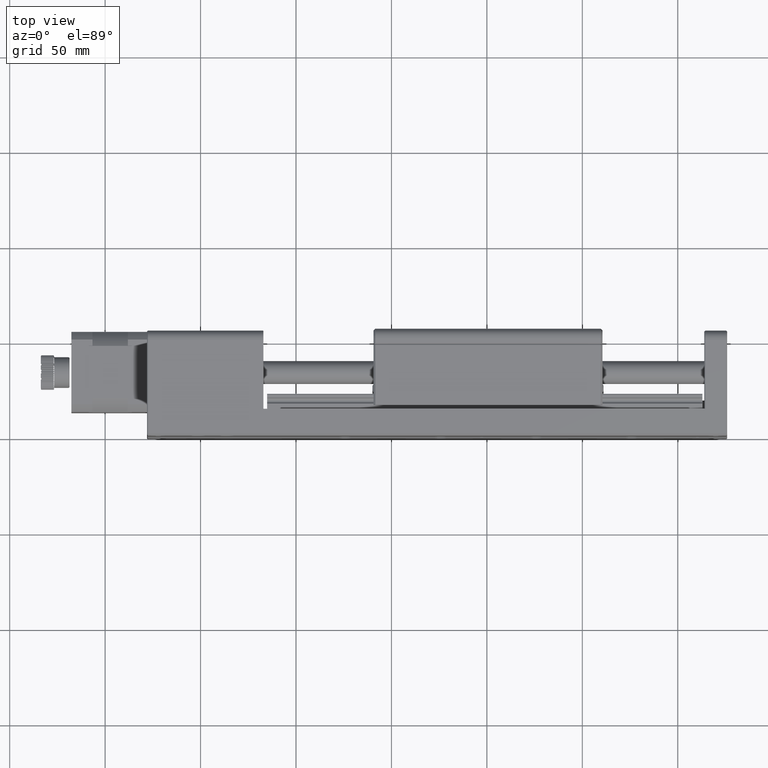
[diagram: clean part render]
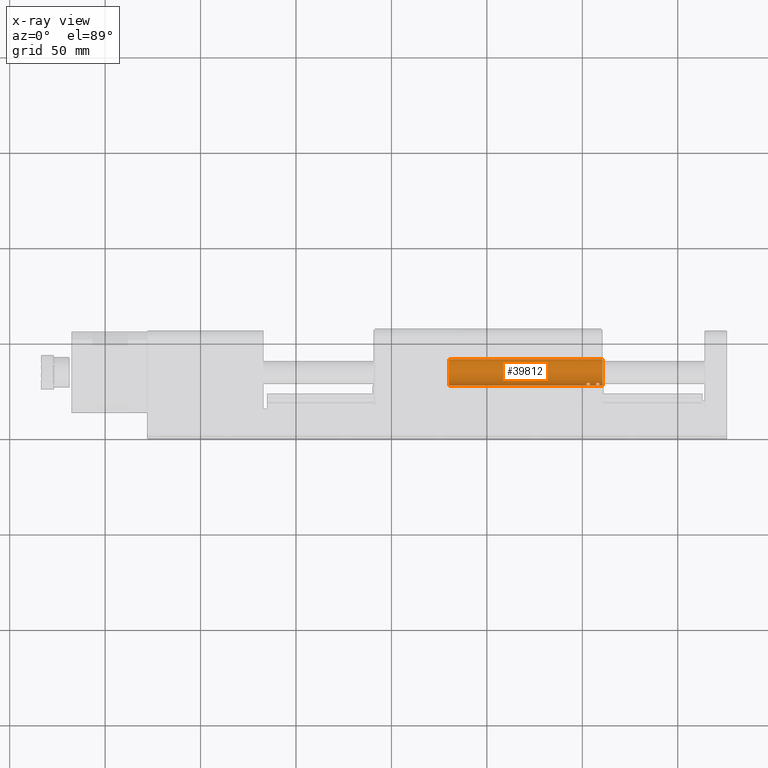
[diagram: x-ray — body ghosted, one internal face saturated and labeled with its STEP entity id]
A machine part, top view, then the same camera in x-ray: the body is ghosted and one INTERNAL B-rep face — a face not visible from any outside direction — is saturated and labeled: STEP entity #39812.
In plain terms, the highlighted cylindrical surface (edge-blend (fillet) strip) has radius 7 mm, axis along (-1, -0, 0).
Its self-contained STEP definition (entity closure, byte-faithful):
#342 = ORIENTED_EDGE ( 'NONE', *, *, #6046, .T. ) ;
#379 = CARTESIAN_POINT ( 'NONE',  ( 3.333834917793924800, 28.62134080773903800, 35.29844818984041400 ) ) ;
#1006 = VERTEX_POINT ( 'NONE', #24223 ) ;
#1505 = VERTEX_POINT ( 'NONE', #14425 ) ;
#1515 = CIRCLE ( 'NONE', #37844, 6.999999999999999100 ) ;
#1552 = EDGE_CURVE ( 'NONE', #1006, #24070, #49358, .T. ) ;
#2730 = CARTESIAN_POINT ( 'NONE',  ( 8.370060043622748600, 27.47566565553556500, 37.24248243164364400 ) ) ;
#3145 = FACE_BOUND ( 'NONE', #15833, .T. ) ;
#3186 = CARTESIAN_POINT ( 'NONE',  ( 10.59401090218482000, 40.99999999999966600, 39.77887723323854600 ) ) ;
#4214 = CARTESIAN_POINT ( 'NONE',  ( 3.948801673170041500, 27.65761389315714800, 36.81463418530294300 ) ) ;
#4389 = CARTESIAN_POINT ( 'NONE',  ( 4.100104551254715600, 27.90780797603685000, 36.32852172817898400 ) ) ;
#4885 = CARTESIAN_POINT ( 'NONE',  ( 2.852936545435991200, 27.46883471476949600, 37.25954258532017600 ) ) ;
#5302 = VECTOR ( 'NONE', #14371, 1000.000000000000000 ) ;
#5810 = B_SPLINE_CURVE_WITH_KNOTS ( 'NONE', 3,
 ( #46529, #16070, #38573, #11930, #46182, #42726, #15570, #23231, #8257, #42065, #379, #23726, #23064, #42391, #23385, #15904 ),
 .UNSPECIFIED., .F., .F.,
 ( 4, 2, 2, 2, 2, 2, 2, 4 ),
 ( 0.0000000000000000000, 0.0004206019097720372700, 0.0008412038195440745300, 0.001261805729316111800, 0.001682407639088149100, 0.002103009548860186300, 0.002523611458632223600, 0.003364815278176284700 ),
 .UNSPECIFIED. ) ;
#5931 = CARTESIAN_POINT ( 'NONE',  ( 8.623774996375505700, 27.51703469139825800, 37.13791264537628200 ) ) ;
#6046 = EDGE_CURVE ( 'NONE', #15683, #9157, #5810, .T. ) ;
#6428 = CARTESIAN_POINT ( 'NONE',  ( 9.094010902184846800, 27.86896194884767700, 36.39814664097176700 ) ) ;
#6848 = CARTESIAN_POINT ( 'NONE',  ( 7.094010902184818300, 28.01094727418924500, 36.15222084355098500 ) ) ;
#7621 = CARTESIAN_POINT ( 'NONE',  ( 4.091469696484572300, 27.97951796328029800, 36.20763150582912000 ) ) ;
#7754 = EDGE_CURVE ( 'NONE', #24070, #10800, #26204, .T. ) ;
#8257 = CARTESIAN_POINT ( 'NONE',  ( 2.908972346423262900, 28.63206666783299100, 35.28606546312693800 ) ) ;
#9157 = VERTEX_POINT ( 'NONE', #7621 ) ;
#9365 = DIRECTION ( 'NONE',  ( -1.000000000000000000, -1.083697977758735300E-016, 4.404331600091459700E-016 ) ) ;
#9933 = CARTESIAN_POINT ( 'NONE',  ( 7.568474760423211700, 27.51596034877201900, 37.14056404328180600 ) ) ;
#10683 = CARTESIAN_POINT ( 'NONE',  ( 7.550569425266530700, 28.51586128469416400, 35.42804045775955000 ) ) ;
#10800 = VERTEX_POINT ( 'NONE', #40781 ) ;
#10835 = CARTESIAN_POINT ( 'NONE',  ( 8.381096293891277000, 28.61077928979217000, 35.31102273096524200 ) ) ;
#11760 = CARTESIAN_POINT ( 'NONE',  ( 2.094010902184813400, 27.86644011830892300, 36.40251457959298900 ) ) ;
#11930 = CARTESIAN_POINT ( 'NONE',  ( 2.201212900321385800, 28.23049194759082400, 35.81265512056552300 ) ) ;
#12338 = CARTESIAN_POINT ( 'NONE',  ( -69.90598909781518000, 40.99999999999965200, 39.77887723323858900 ) ) ;
#13056 = CARTESIAN_POINT ( 'NONE',  ( -69.90598909781518000, 33.99999999999965900, 39.77887723323848900 ) ) ;
#13379 = CARTESIAN_POINT ( 'NONE',  ( 7.094010902184817400, 27.93782217350865300, 36.27887723323835400 ) ) ;
#13901 = B_SPLINE_CURVE_WITH_KNOTS ( 'NONE', 3,
 ( #13379, #6848, #29656, #17997, #22325, #44650, #10683, #37496, #37320, #22005, #14671, #41322, #10835, #21831, #25644, #44958, #45273, #48475 ),
 .UNSPECIFIED., .F., .F.,
 ( 4, 2, 2, 2, 2, 2, 2, 2, 4 ),
 ( 7.806255641895631900E-018, 0.0004308723938036088100, 0.0008617447876072098200, 0.001292617181410810900, 0.001508053378312604600, 0.001723489575214398600, 0.002154361969017990900, 0.002585234362821583600, 0.003446979150428765600 ),
 .UNSPECIFIED. ) ;
#13916 = CARTESIAN_POINT ( 'NONE',  ( 9.094010902184829000, 27.93782217350865700, 36.27887723323834700 ) ) ;
#13980 = ORIENTED_EDGE ( 'NONE', *, *, #40896, .T. ) ;
#14259 = CARTESIAN_POINT ( 'NONE',  ( 8.983276859813388500, 27.68652703705172900, 36.75283858146298100 ) ) ;
#14371 = DIRECTION ( 'NONE',  ( -1.000000000000000000, -1.083697977758735300E-016, 4.404331600091459700E-016 ) ) ;
#14425 = CARTESIAN_POINT ( 'NONE',  ( 9.094010902184829000, 27.93782217350865700, 36.27887723323834700 ) ) ;
#14609 = EDGE_CURVE ( 'NONE', #37675, #10800, #1515, .T. ) ;
#14671 = CARTESIAN_POINT ( 'NONE',  ( 8.019026705277502400, 28.63792833185393100, 35.27907862749492600 ) ) ;
#14711 = VERTEX_POINT ( 'NONE', #44473 ) ;
#14898 = VECTOR ( 'NONE', #43737, 1000.000000000000000 ) ;
#15311 = EDGE_LOOP ( 'NONE', ( #35676, #13980 ) ) ;
#15570 = CARTESIAN_POINT ( 'NONE',  ( 2.529910962387948500, 28.50449479290843900, 35.44237329703213400 ) ) ;
#15683 = VERTEX_POINT ( 'NONE', #45727 ) ;
#15739 = CARTESIAN_POINT ( 'NONE',  ( 3.280994073904571100, 27.46447227922155700, 37.27150331756452300 ) ) ;
#15833 = EDGE_LOOP ( 'NONE', ( #342, #37740 ) ) ;
#15904 = CARTESIAN_POINT ( 'NONE',  ( 4.091469696484572300, 27.97951796328029800, 36.20763150582912000 ) ) ;
#16070 = CARTESIAN_POINT ( 'NONE',  ( 2.094010902184812600, 28.00920422870839100, 36.15523988688372700 ) ) ;
#17422 = CARTESIAN_POINT ( 'NONE',  ( 8.235424636860397400, 27.46456714803792900, 37.27121803282661000 ) ) ;
#17582 = CARTESIAN_POINT ( 'NONE',  ( 9.072216838396371900, 27.80306120119937000, 36.52084096888574300 ) ) ;
#17997 = CARTESIAN_POINT ( 'NONE',  ( 7.206463973074222400, 28.23779110880698400, 35.80195220565437400 ) ) ;
#18883 = AXIS2_PLACEMENT_3D ( 'NONE', #39922, #47558, #24901 ) ;
#19537 = CARTESIAN_POINT ( 'NONE',  ( 2.116975791045518500, 27.79925221276035800, 36.52792659103226900 ) ) ;
#19812 = FACE_OUTER_BOUND ( 'NONE', #42097, .T. ) ;
#20539 = EDGE_CURVE ( 'NONE', #14711, #1505, #13901, .T. ) ;
#21062 = CARTESIAN_POINT ( 'NONE',  ( 10.59401090218482000, 26.99999999999967000, 39.77887723323834700 ) ) ;
#21236 = AXIS2_PLACEMENT_3D ( 'NONE', #41893, #26208, #22394 ) ;
#21417 = CARTESIAN_POINT ( 'NONE',  ( 8.735905279348447300, 27.55012402397306900, 37.05674370067612200 ) ) ;
#21575 = CARTESIAN_POINT ( 'NONE',  ( 7.455927489018207200, 27.54873938022582900, 37.06001696328231500 ) ) ;
#21603 = CYLINDRICAL_SURFACE ( 'NONE', #18883, 6.999999999999999100 ) ;
#21831 = CARTESIAN_POINT ( 'NONE',  ( 8.633207122440291300, 28.51797143282434300, 35.42539741756384300 ) ) ;
#22005 = CARTESIAN_POINT ( 'NONE',  ( 7.945725733848983700, 28.63095693473198700, 35.28735328548999200 ) ) ;
#22325 = CARTESIAN_POINT ( 'NONE',  ( 7.272252744852713700, 28.31350950437583300, 35.69508430240172500 ) ) ;
#22394 = DIRECTION ( 'NONE',  ( 0.0000000000000000000, 1.000000000000000000, 1.387778780781445800E-014 ) ) ;
#22795 = FACE_BOUND ( 'NONE', #15311, .T. ) ;
#23064 = CARTESIAN_POINT ( 'NONE',  ( 3.698867457721806100, 28.48013043810296100, 35.47272099530989900 ) ) ;
#23231 = CARTESIAN_POINT ( 'NONE',  ( 2.769981207602899300, 28.60050985821386900, 35.32339184120115000 ) ) ;
#23234 = CARTESIAN_POINT ( 'NONE',  ( 2.996539163732466100, 27.45959734465747500, 37.28424707065845200 ) ) ;
#23385 = CARTESIAN_POINT ( 'NONE',  ( 4.074199986944287300, 28.12293793776719000, 35.96585106112937800 ) ) ;
#23726 = CARTESIAN_POINT ( 'NONE',  ( 3.588608895893559100, 28.53912409915932400, 35.39903094426489400 ) ) ;
#23890 = CARTESIAN_POINT ( 'NONE',  ( 4.091469696484572300, 27.97951796328029800, 36.20763150582912000 ) ) ;
#24070 = VERTEX_POINT ( 'NONE', #24433 ) ;
#24223 = CARTESIAN_POINT ( 'NONE',  ( 10.59401090218482000, 40.99999999999966600, 39.77887723323854600 ) ) ;
#24433 = CARTESIAN_POINT ( 'NONE',  ( 10.59401090218482000, 26.99999999999967000, 39.77887723323836200 ) ) ;
#24901 = DIRECTION ( 'NONE',  ( 0.0000000000000000000, 1.000000000000000000, 1.387778780781445800E-014 ) ) ;
#24904 = CARTESIAN_POINT ( 'NONE',  ( 7.094010902184817400, 27.93782217350865300, 36.27887723323835400 ) ) ;
#25225 = CARTESIAN_POINT ( 'NONE',  ( 7.206368287968062200, 27.68485715100863600, 36.75626354511670300 ) ) ;
#25644 = CARTESIAN_POINT ( 'NONE',  ( 8.740858052272546500, 28.45442235559185200, 35.50568892652032800 ) ) ;
#26204 = LINE ( 'NONE', #21062, #14898 ) ;
#26208 = DIRECTION ( 'NONE',  ( -1.000000000000000000, -1.083697977758735300E-016, 4.404331600091459700E-016 ) ) ;
#27196 = CARTESIAN_POINT ( 'NONE',  ( 4.086424599112982400, 27.83799747234221700, 36.45501238894815500 ) ) ;
#27716 = CARTESIAN_POINT ( 'NONE',  ( 3.778976884662989200, 27.56583772296340500, 37.01950154872818600 ) ) ;
#28748 = EDGE_CURVE ( 'NONE', #9157, #15683, #31206, .T. ) ;
#29162 = EDGE_CURVE ( 'NONE', #1006, #37675, #38692, .T. ) ;
#29394 = CARTESIAN_POINT ( 'NONE',  ( 8.166839574439448400, 27.46173129732261500, 37.27866875805249700 ) ) ;
#29656 = CARTESIAN_POINT ( 'NONE',  ( 7.117209481140419000, 28.08575771066745500, 36.03178207514077500 ) ) ;
#30727 = ORIENTED_EDGE ( 'NONE', *, *, #7754, .F. ) ;
#30889 = CARTESIAN_POINT ( 'NONE',  ( 2.094010902184813400, 27.93782217350865300, 36.27887723323835400 ) ) ;
#31047 = CARTESIAN_POINT ( 'NONE',  ( 2.591541954216071400, 27.51018473381079600, 37.15486030075896200 ) ) ;
#31206 = B_SPLINE_CURVE_WITH_KNOTS ( 'NONE', 3,
 ( #23890, #4389, #27196, #35220, #4214, #27716, #35059, #38745, #15739, #23234, #4885, #31047, #42393, #46697, #34888, #19537, #11760, #30889 ),
 .UNSPECIFIED., .F., .F.,
 ( 4, 2, 2, 2, 2, 2, 2, 2, 4 ),
 ( 0.003364815278176284700, 0.003785417187948320700, 0.004206019097720356200, 0.004626621007492392200, 0.005047222917264428100, 0.005467824827036463200, 0.005888426736808500100, 0.006309028646580535200, 0.006729630556352571100 ),
 .UNSPECIFIED. ) ;
#32593 = CARTESIAN_POINT ( 'NONE',  ( 8.436780989911264700, 27.48409974624375000, 37.22076715550112200 ) ) ;
#32760 = CARTESIAN_POINT ( 'NONE',  ( 7.275507521432951200, 27.63295037606453900, 36.86826839003431600 ) ) ;
#33480 = ORIENTED_EDGE ( 'NONE', *, *, #29162, .T. ) ;
#33591 = ORIENTED_EDGE ( 'NONE', *, *, #14609, .T. ) ;
#34888 = CARTESIAN_POINT ( 'NONE',  ( 2.212097785341872000, 27.67938467841798900, 36.76760256034643200 ) ) ;
#35059 = CARTESIAN_POINT ( 'NONE',  ( 3.669156776229663300, 27.52895977093530500, 37.10863416503904200 ) ) ;
#35220 = CARTESIAN_POINT ( 'NONE',  ( 4.011607602305030400, 27.71400536304776100, 36.69592019847817000 ) ) ;
#35676 = ORIENTED_EDGE ( 'NONE', *, *, #20539, .T. ) ;
#36894 = CARTESIAN_POINT ( 'NONE',  ( 8.914360173475858000, 27.63421873097082600, 36.86550463260756100 ) ) ;
#37320 = CARTESIAN_POINT ( 'NONE',  ( 7.806221137125693800, 28.60503683314062300, 35.31852038225321900 ) ) ;
#37496 = CARTESIAN_POINT ( 'NONE',  ( 7.739703391713010900, 28.58629347393426600, 35.34117837307117300 ) ) ;
#37675 = VERTEX_POINT ( 'NONE', #12338 ) ;
#37740 = ORIENTED_EDGE ( 'NONE', *, *, #28748, .T. ) ;
#37844 = AXIS2_PLACEMENT_3D ( 'NONE', #13056, #9365, #39676 ) ;
#37929 = ORIENTED_EDGE ( 'NONE', *, *, #1552, .F. ) ;
#38573 = CARTESIAN_POINT ( 'NONE',  ( 2.116153797477988700, 28.08218893165774000, 36.03753346752061000 ) ) ;
#38692 = LINE ( 'NONE', #3186, #5302 ) ;
#38745 = CARTESIAN_POINT ( 'NONE',  ( 3.421266672271286300, 27.47865179763052600, 37.23396518900326400 ) ) ;
#39527 = B_SPLINE_CURVE_WITH_KNOTS ( 'NONE', 3,
 ( #13916, #6428, #17582, #14259, #36894, #21417, #5931, #32593, #2730, #17422, #29394, #44075, #47877, #9933, #21575, #32760, #25225, #40575, #44395, #24904 ),
 .UNSPECIFIED., .F., .F.,
 ( 4, 2, 2, 2, 2, 2, 2, 2, 2, 4 ),
 ( 0.003446979150428765600, 0.003857310576169246500, 0.004267642001909727900, 0.004677973427650208800, 0.004883139140520444100, 0.005088304853390680300, 0.005498636279131156900, 0.005908967704871632600, 0.006319299130612108400, 0.006729630556352585000 ),
 .UNSPECIFIED. ) ;
#39676 = DIRECTION ( 'NONE',  ( 0.0000000000000000000, 1.000000000000000000, 1.387778780781445800E-014 ) ) ;
#39812 = ADVANCED_FACE ( 'NONE', ( #19812, #22795, #3145 ), #21603, .F. ) ;
#39922 = CARTESIAN_POINT ( 'NONE',  ( 10.59401090218482000, 33.99999999999966600, 39.77887723323844700 ) ) ;
#40575 = CARTESIAN_POINT ( 'NONE',  ( 7.115821656381114300, 27.80259045240172000, 36.52167941761143800 ) ) ;
#40781 = CARTESIAN_POINT ( 'NONE',  ( -69.90598909781518000, 26.99999999999965500, 39.77887723323836200 ) ) ;
#40896 = EDGE_CURVE ( 'NONE', #1505, #14711, #39527, .T. ) ;
#41322 = CARTESIAN_POINT ( 'NONE',  ( 8.235772143277747800, 28.63842597247627000, 35.27848567097223100 ) ) ;
#41893 = CARTESIAN_POINT ( 'NONE',  ( 10.59401090218482000, 33.99999999999966600, 39.77887723323844700 ) ) ;
#42065 = CARTESIAN_POINT ( 'NONE',  ( 3.190935633102128100, 28.64249854346295600, 35.27363095767861300 ) ) ;
#42097 = EDGE_LOOP ( 'NONE', ( #30727, #37929, #33480, #33591 ) ) ;
#42391 = CARTESIAN_POINT ( 'NONE',  ( 3.969460994048101800, 28.28254349618989500, 35.73431826713813600 ) ) ;
#42393 = CARTESIAN_POINT ( 'NONE',  ( 2.473992523992075500, 27.54242264284505000, 37.07502697888495600 ) ) ;
#42726 = CARTESIAN_POINT ( 'NONE',  ( 2.427910171022225100, 28.44125099544440300, 35.52288331011525500 ) ) ;
#43737 = DIRECTION ( 'NONE',  ( -1.000000000000000000, -1.083697977758735300E-016, 4.404331600091459700E-016 ) ) ;
#44075 = CARTESIAN_POINT ( 'NONE',  ( 7.957116895593284100, 27.46149705338932300, 37.27928138423414600 ) ) ;
#44395 = CARTESIAN_POINT ( 'NONE',  ( 7.094010902184816600, 27.86818316378978000, 36.39949553626021800 ) ) ;
#44473 = CARTESIAN_POINT ( 'NONE',  ( 7.094010902184817400, 27.93782217350865300, 36.27887723323835400 ) ) ;
#44650 = CARTESIAN_POINT ( 'NONE',  ( 7.444100623050080600, 28.45237817392846600, 35.50834671190146000 ) ) ;
#44958 = CARTESIAN_POINT ( 'NONE',  ( 9.000661720701854700, 28.24575314223258400, 35.78601836280615300 ) ) ;
#45273 = CARTESIAN_POINT ( 'NONE',  ( 9.094010902184846800, 28.08243683364096600, 36.02839729436988800 ) ) ;
#45727 = CARTESIAN_POINT ( 'NONE',  ( 2.094010902184813400, 27.93782217350865300, 36.27887723323835400 ) ) ;
#46182 = CARTESIAN_POINT ( 'NONE',  ( 2.264159499299550800, 28.30470292224222800, 35.70741975889424700 ) ) ;
#46529 = CARTESIAN_POINT ( 'NONE',  ( 2.094010902184813400, 27.93782217350865300, 36.27887723323835400 ) ) ;
#46697 = CARTESIAN_POINT ( 'NONE',  ( 2.284845908263135200, 27.62676540480932600, 36.88181107654261100 ) ) ;
#47558 = DIRECTION ( 'NONE',  ( -1.000000000000000000, -1.083697977758735300E-016, 4.404331600091459700E-016 ) ) ;
#47877 = CARTESIAN_POINT ( 'NONE',  ( 7.819057694835785300, 27.47249800434463700, 37.25000705394670300 ) ) ;
#48475 = CARTESIAN_POINT ( 'NONE',  ( 9.094010902184829000, 27.93782217350865700, 36.27887723323834700 ) ) ;
#49358 = CIRCLE ( 'NONE', #21236, 6.999999999999999100 ) ;